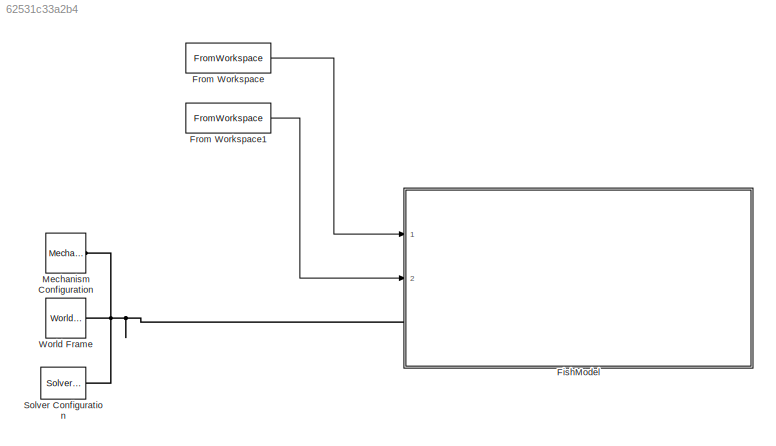
MODEL slx_62531c33a2b4
KIND model
CONFIG AbsTol = auto
CONFIG EnableMultiTasking = off
CONFIG FixedStep = auto
CONFIG InitFcn = initSoftFishCocontraction
CONFIG MaxStep = auto
CONFIG MinStep = auto
CONFIG RelTol = 1e-3
CONFIG SampleTimeConstraint = Unconstrained
CONFIG Solver = VariableStepAuto
CONFIG SolverName = VariableStepAuto
CONFIG StartTime = 0.0
CONFIG StopTime = tEnd
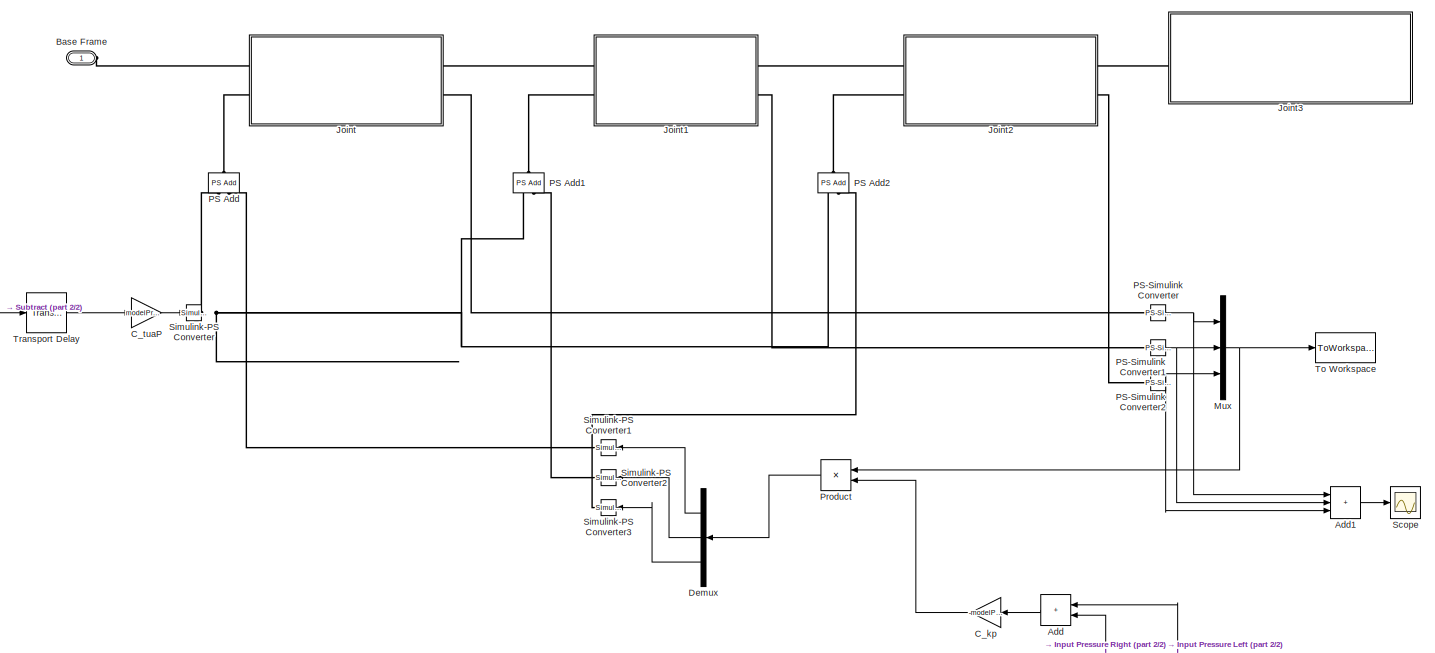
[diagram: FishModel - part 1/2, most of the canvas]
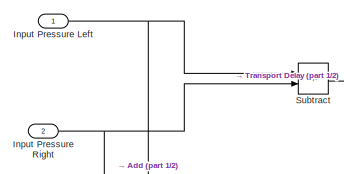
[diagram: FishModel - part 2/2, middle left region]
BLOCK [SubSystem] FishModel
  Ports = [2, 0, 0, 0, 0, 1]
  RequestExecContextInheritance = off
BLOCK [Sum] FishModel/Add
  IconShape = rectangular
  Ports = [2, 1]
BLOCK [Sum] FishModel/Add1
  IconShape = rectangular
  Inputs = +++
  Ports = [3, 1]
BLOCK [PMIOPort] FishModel/Base Frame
  Side = Left
BLOCK [Gain] FishModel/C_kp
  Gain = -modelPressureStiffness
BLOCK [Gain] FishModel/C_tuaP
  Gain = modelPressureCoefficient
BLOCK [Demux] FishModel/Demux
  Outputs = 3
  Ports = [1, 3]
BLOCK [Inport] FishModel/Input Pressure Left
BLOCK [Inport] FishModel/Input Pressure Right
  Port = 2
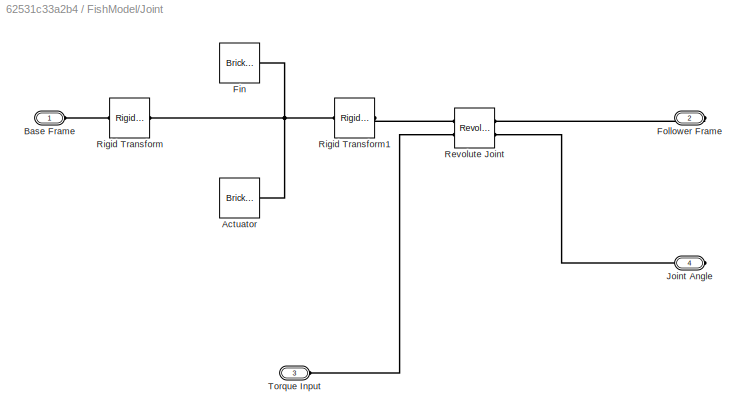
BLOCK [SubSystem] FishModel/Joint
  Ports = [0, 0, 0, 0, 0, 2, 2]
  RequestExecContextInheritance = off
BLOCK [Reference] FishModel/Joint/Actuator  REF=sm_lib/Body Elements/Brick Solid
  Ports = [0, 0, 0, 0, 0, 0, 1]
  SourceBlock = sm_lib/Body Elements/Brick Solid
  SourceProductBaseCode = MS
  SourceType = Brick Solid
BLOCK [PMIOPort] FishModel/Joint/Base Frame
  Side = Left
BLOCK [Reference] FishModel/Joint/Fin  REF=sm_lib/Body Elements/Brick Solid
  Ports = [0, 0, 0, 0, 0, 0, 1]
  SourceBlock = sm_lib/Body Elements/Brick Solid
  SourceProductBaseCode = MS
  SourceType = Brick Solid
BLOCK [PMIOPort] FishModel/Joint/Follower Frame
  Port = 2
  Side = Right
BLOCK [PMIOPort] FishModel/Joint/Joint Angle 
  Port = 4
  Side = Right
BLOCK [Reference] FishModel/Joint/Revolute Joint  REF=sm_lib/Joints/Revolute Joint
  Ports = [0, 0, 0, 0, 0, 2, 2]
  SourceBlock = sm_lib/Joints/Revolute Joint
  SourceProductBaseCode = MS
  SourceType = Revolute Joint
BLOCK [Reference] FishModel/Joint/Rigid Transform  REF=sm_lib/Frames and
Transforms/Rigid
Transform
  Ports = [0, 0, 0, 0, 0, 1, 1]
  SourceBlock = sm_lib/Frames and\nTransforms/Rigid\nTransform
  SourceProductBaseCode = MS
  SourceType = Rigid\nTransform
BLOCK [Reference] FishModel/Joint/Rigid Transform1  REF=sm_lib/Frames and
Transforms/Rigid
Transform
  Ports = [0, 0, 0, 0, 0, 1, 1]
  SourceBlock = sm_lib/Frames and\nTransforms/Rigid\nTransform
  SourceProductBaseCode = MS
  SourceType = Rigid\nTransform
BLOCK [PMIOPort] FishModel/Joint/Torque Input
  Port = 3
  Side = Left
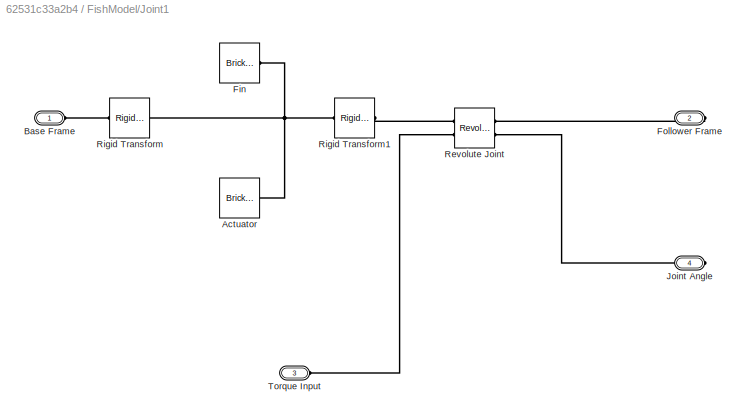
BLOCK [SubSystem] FishModel/Joint1
  Ports = [0, 0, 0, 0, 0, 2, 2]
  RequestExecContextInheritance = off
BLOCK [Reference] FishModel/Joint1/Actuator  REF=sm_lib/Body Elements/Brick Solid
  Ports = [0, 0, 0, 0, 0, 0, 1]
  SourceBlock = sm_lib/Body Elements/Brick Solid
  SourceProductBaseCode = MS
  SourceType = Brick Solid
BLOCK [PMIOPort] FishModel/Joint1/Base Frame
  Side = Left
BLOCK [Reference] FishModel/Joint1/Fin  REF=sm_lib/Body Elements/Brick Solid
  Ports = [0, 0, 0, 0, 0, 0, 1]
  SourceBlock = sm_lib/Body Elements/Brick Solid
  SourceProductBaseCode = MS
  SourceType = Brick Solid
BLOCK [PMIOPort] FishModel/Joint1/Follower Frame
  Port = 2
  Side = Right
BLOCK [PMIOPort] FishModel/Joint1/Joint Angle 
  Port = 4
  Side = Right
BLOCK [Reference] FishModel/Joint1/Revolute Joint  REF=sm_lib/Joints/Revolute Joint
  Ports = [0, 0, 0, 0, 0, 2, 2]
  SourceBlock = sm_lib/Joints/Revolute Joint
  SourceProductBaseCode = MS
  SourceType = Revolute Joint
BLOCK [Reference] FishModel/Joint1/Rigid Transform  REF=sm_lib/Frames and
Transforms/Rigid
Transform
  Ports = [0, 0, 0, 0, 0, 1, 1]
  SourceBlock = sm_lib/Frames and\nTransforms/Rigid\nTransform
  SourceProductBaseCode = MS
  SourceType = Rigid\nTransform
BLOCK [Reference] FishModel/Joint1/Rigid Transform1  REF=sm_lib/Frames and
Transforms/Rigid
Transform
  Ports = [0, 0, 0, 0, 0, 1, 1]
  SourceBlock = sm_lib/Frames and\nTransforms/Rigid\nTransform
  SourceProductBaseCode = MS
  SourceType = Rigid\nTransform
BLOCK [PMIOPort] FishModel/Joint1/Torque Input
  Port = 3
  Side = Left
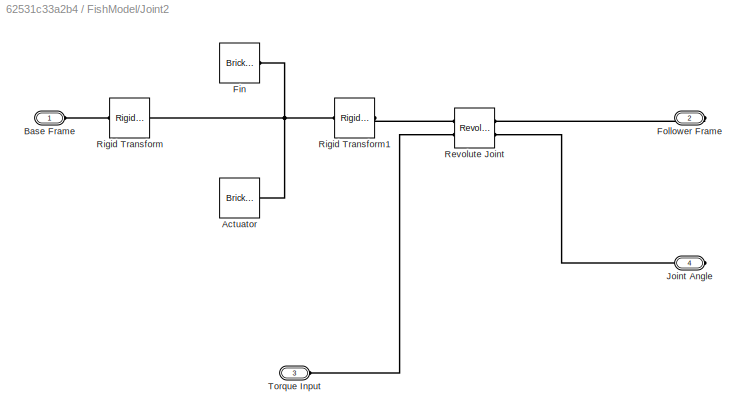
BLOCK [SubSystem] FishModel/Joint2
  Ports = [0, 0, 0, 0, 0, 2, 2]
  RequestExecContextInheritance = off
BLOCK [Reference] FishModel/Joint2/Actuator  REF=sm_lib/Body Elements/Brick Solid
  Ports = [0, 0, 0, 0, 0, 0, 1]
  SourceBlock = sm_lib/Body Elements/Brick Solid
  SourceProductBaseCode = MS
  SourceType = Brick Solid
BLOCK [PMIOPort] FishModel/Joint2/Base Frame
  Side = Left
BLOCK [Reference] FishModel/Joint2/Fin  REF=sm_lib/Body Elements/Brick Solid
  Ports = [0, 0, 0, 0, 0, 0, 1]
  SourceBlock = sm_lib/Body Elements/Brick Solid
  SourceProductBaseCode = MS
  SourceType = Brick Solid
BLOCK [PMIOPort] FishModel/Joint2/Follower Frame
  Port = 2
  Side = Right
BLOCK [PMIOPort] FishModel/Joint2/Joint Angle 
  Port = 4
  Side = Right
BLOCK [Reference] FishModel/Joint2/Revolute Joint  REF=sm_lib/Joints/Revolute Joint
  Ports = [0, 0, 0, 0, 0, 2, 2]
  SourceBlock = sm_lib/Joints/Revolute Joint
  SourceProductBaseCode = MS
  SourceType = Revolute Joint
BLOCK [Reference] FishModel/Joint2/Rigid Transform  REF=sm_lib/Frames and
Transforms/Rigid
Transform
  Ports = [0, 0, 0, 0, 0, 1, 1]
  SourceBlock = sm_lib/Frames and\nTransforms/Rigid\nTransform
  SourceProductBaseCode = MS
  SourceType = Rigid\nTransform
BLOCK [Reference] FishModel/Joint2/Rigid Transform1  REF=sm_lib/Frames and
Transforms/Rigid
Transform
  Ports = [0, 0, 0, 0, 0, 1, 1]
  SourceBlock = sm_lib/Frames and\nTransforms/Rigid\nTransform
  SourceProductBaseCode = MS
  SourceType = Rigid\nTransform
BLOCK [PMIOPort] FishModel/Joint2/Torque Input
  Port = 3
  Side = Left
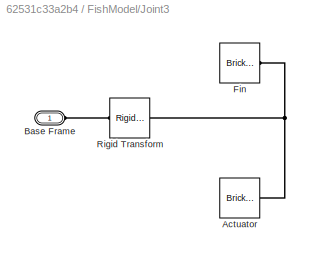
BLOCK [SubSystem] FishModel/Joint3
  Ports = [0, 0, 0, 0, 0, 1]
  RequestExecContextInheritance = off
BLOCK [Reference] FishModel/Joint3/Actuator  REF=sm_lib/Body Elements/Brick Solid
  Ports = [0, 0, 0, 0, 0, 0, 1]
  SourceBlock = sm_lib/Body Elements/Brick Solid
  SourceProductBaseCode = MS
  SourceType = Brick Solid
BLOCK [PMIOPort] FishModel/Joint3/Base Frame
  Side = Left
BLOCK [Reference] FishModel/Joint3/Fin  REF=sm_lib/Body Elements/Brick Solid
  Ports = [0, 0, 0, 0, 0, 0, 1]
  SourceBlock = sm_lib/Body Elements/Brick Solid
  SourceProductBaseCode = MS
  SourceType = Brick Solid
BLOCK [Reference] FishModel/Joint3/Rigid Transform  REF=sm_lib/Frames and
Transforms/Rigid
Transform
  Ports = [0, 0, 0, 0, 0, 1, 1]
  SourceBlock = sm_lib/Frames and\nTransforms/Rigid\nTransform
  SourceProductBaseCode = MS
  SourceType = Rigid\nTransform
BLOCK [Mux] FishModel/Mux
  DisplayOption = bar
  Inputs = 3
  Ports = [3, 1]
BLOCK [Reference] FishModel/PS Add  REF=fl_lib/Physical Signals/Functions/PS Add
  NameLocation = right
  Ports = [0, 0, 0, 0, 0, 2, 1]
  SourceBlock = fl_lib/Physical Signals/Functions/PS Add
  SourceProductBaseCode = SS
  SourceType = PS Add
BLOCK [Reference] FishModel/PS Add1  REF=fl_lib/Physical Signals/Functions/PS Add
  NameLocation = right
  Ports = [0, 0, 0, 0, 0, 2, 1]
  SourceBlock = fl_lib/Physical Signals/Functions/PS Add
  SourceProductBaseCode = SS
  SourceType = PS Add
BLOCK [Reference] FishModel/PS Add2  REF=fl_lib/Physical Signals/Functions/PS Add
  NameLocation = right
  Ports = [0, 0, 0, 0, 0, 2, 1]
  SourceBlock = fl_lib/Physical Signals/Functions/PS Add
  SourceProductBaseCode = SS
  SourceType = PS Add
BLOCK [Reference] FishModel/PS-Simulink Converter  REF=nesl_utility/PS-Simulink
Converter
  Ports = [0, 1, 0, 0, 0, 1]
  SourceBlock = nesl_utility/PS-Simulink\nConverter
  SourceProductBaseCode = SS
  SourceType = PS-Simulink\nConverter
BLOCK [Reference] FishModel/PS-Simulink Converter1  REF=nesl_utility/PS-Simulink
Converter
  Ports = [0, 1, 0, 0, 0, 1]
  SourceBlock = nesl_utility/PS-Simulink\nConverter
  SourceProductBaseCode = SS
  SourceType = PS-Simulink\nConverter
BLOCK [Reference] FishModel/PS-Simulink Converter2  REF=nesl_utility/PS-Simulink
Converter
  Ports = [0, 1, 0, 0, 0, 1]
  SourceBlock = nesl_utility/PS-Simulink\nConverter
  SourceProductBaseCode = SS
  SourceType = PS-Simulink\nConverter
BLOCK [Product] FishModel/Product
  Ports = [2, 1]
BLOCK [Scope] FishModel/Scope
  Floating = off
  NumInputPorts = 1
  Ports = [1]
  ScopeSpecificationString = Simulink.scopes.TimeScopeBlockCfg('CurrentConfiguration', extmgr.ConfigurationSet(extmgr.Configuration('Core','General UI',true),extmgr.Configuration('Core','Source UI',true),extmgr.Configuration('Sources','WiredSimulink',true),extmgr.Configuration('Visuals','Time Domain',true,'SerializedDisplays',{struct('MinYLimReal','-1.28147','MaxYLimReal','1.28145','YLabelReal','','MinYLimMag','0.00000','MaxY...<+1397ch>
BLOCK [Reference] FishModel/Simulink-PS Converter  REF=nesl_utility/Simulink-PS
Converter
  Ports = [1, 0, 0, 0, 0, 0, 1]
  SourceBlock = nesl_utility/Simulink-PS\nConverter
  SourceProductBaseCode = SS
  SourceType = Simulink-PS\nConverter
BLOCK [Reference] FishModel/Simulink-PS Converter1  REF=nesl_utility/Simulink-PS
Converter
  Ports = [1, 0, 0, 0, 0, 0, 1]
  SourceBlock = nesl_utility/Simulink-PS\nConverter
  SourceProductBaseCode = SS
  SourceType = Simulink-PS\nConverter
BLOCK [Reference] FishModel/Simulink-PS Converter2  REF=nesl_utility/Simulink-PS
Converter
  Ports = [1, 0, 0, 0, 0, 0, 1]
  SourceBlock = nesl_utility/Simulink-PS\nConverter
  SourceProductBaseCode = SS
  SourceType = Simulink-PS\nConverter
BLOCK [Reference] FishModel/Simulink-PS Converter3  REF=nesl_utility/Simulink-PS
Converter
  Ports = [1, 0, 0, 0, 0, 0, 1]
  SourceBlock = nesl_utility/Simulink-PS\nConverter
  SourceProductBaseCode = SS
  SourceType = Simulink-PS\nConverter
BLOCK [Sum] FishModel/Subtract
  IconShape = rectangular
  Inputs = +-
  Ports = [2, 1]
BLOCK [ToWorkspace] FishModel/To Workspace
  FixptAsFi = on
  MaxDataPoints = inf
  Ports = [1]
  SampleTime = -1
  SaveFormat = Structure With Time
  VariableName = angles
BLOCK [TransportDelay] FishModel/Transport Delay
  DelayTime = modelPressureLag
  Ports = [1, 1]
BLOCK [FromWorkspace] From Workspace
  VariableName = inputPressureLeft
BLOCK [FromWorkspace] From Workspace1
  VariableName = inputPressureRight
BLOCK [Reference] Mechanism Configuration  REF=sm_lib/Utilities/Mechanism
Configuration
  Ports = [0, 0, 0, 0, 0, 0, 1]
  SourceBlock = sm_lib/Utilities/Mechanism\nConfiguration
  SourceProductBaseCode = MS
  SourceType = Mechanism\nConfiguration
BLOCK [Reference] Solver Configuration  REF=nesl_utility/Solver
Configuration
  Ports = [0, 0, 0, 0, 0, 0, 1]
  SourceBlock = nesl_utility/Solver\nConfiguration
  SourceProductBaseCode = SS
  SourceType = Solver\nConfiguration
BLOCK [Reference] World Frame  REF=sm_lib/Frames and
Transforms/World Frame
  Ports = [0, 0, 0, 0, 0, 0, 1]
  SourceBlock = sm_lib/Frames and\nTransforms/World Frame
  SourceProductBaseCode = MS
  SourceType = World Frame
LINE FishModel/Add1:1 -> FishModel/Scope:1
LINE FishModel/Add:1 -> FishModel/C_kp:1
LINE FishModel/C_kp:1 -> FishModel/Product:2
LINE FishModel/C_tuaP:1 -> FishModel/Simulink-PS Converter:1
LINE FishModel/Demux:1 -> FishModel/Simulink-PS Converter1:1
LINE FishModel/Demux:2 -> FishModel/Simulink-PS Converter2:1
LINE FishModel/Demux:3 -> FishModel/Simulink-PS Converter3:1
NET FishModel/Input Pressure Left:1 -> FishModel/Add:1, FishModel/Subtract:1
NET FishModel/Input Pressure Right:1 -> FishModel/Add:2, FishModel/Subtract:2
NET FishModel/Mux:1 -> FishModel/Product:1, FishModel/To Workspace:1
NET FishModel/PS-Simulink Converter1:1 -> FishModel/Add1:2, FishModel/Mux:2
NET FishModel/PS-Simulink Converter2:1 -> FishModel/Add1:3, FishModel/Mux:3
NET FishModel/PS-Simulink Converter:1 -> FishModel/Add1:1, FishModel/Mux:1
LINE FishModel/Product:1 -> FishModel/Demux:1
LINE FishModel/Subtract:1 -> FishModel/Transport Delay:1
LINE FishModel/Transport Delay:1 -> FishModel/C_tuaP:1
LINE From Workspace1:1 -> FishModel:2
LINE From Workspace:1 -> FishModel:1
PLINE FishModel/Base Frame:RConn1 -- FishModel/Joint:LConn1
PNET net1: FishModel/Joint/Actuator:RConn1 -- FishModel/Joint/Fin:RConn1 -- FishModel/Joint/Rigid Transform1:LConn1 -- FishModel/Joint/Rigid Transform:RConn1
PLINE FishModel/Joint/Base Frame:RConn1 -- FishModel/Joint/Rigid Transform:LConn1
PLINE FishModel/Joint/Follower Frame:RConn1 -- FishModel/Joint/Revolute Joint:RConn1
PLINE FishModel/Joint/Joint Angle :RConn1 -- FishModel/Joint/Revolute Joint:RConn2
PLINE FishModel/Joint/Revolute Joint:LConn1 -- FishModel/Joint/Rigid Transform1:RConn1
PLINE FishModel/Joint/Revolute Joint:LConn2 -- FishModel/Joint/Torque Input:RConn1
PNET net2: FishModel/Joint1/Actuator:RConn1 -- FishModel/Joint1/Fin:RConn1 -- FishModel/Joint1/Rigid Transform1:LConn1 -- FishModel/Joint1/Rigid Transform:RConn1
PLINE FishModel/Joint1/Base Frame:RConn1 -- FishModel/Joint1/Rigid Transform:LConn1
PLINE FishModel/Joint1/Follower Frame:RConn1 -- FishModel/Joint1/Revolute Joint:RConn1
PLINE FishModel/Joint1/Joint Angle :RConn1 -- FishModel/Joint1/Revolute Joint:RConn2
PLINE FishModel/Joint1/Revolute Joint:LConn1 -- FishModel/Joint1/Rigid Transform1:RConn1
PLINE FishModel/Joint1/Revolute Joint:LConn2 -- FishModel/Joint1/Torque Input:RConn1
PLINE FishModel/Joint1:LConn1 -- FishModel/Joint:RConn1
PLINE FishModel/Joint1:LConn2 -- FishModel/PS Add1:RConn1
PLINE FishModel/Joint1:RConn1 -- FishModel/Joint2:LConn1
PLINE FishModel/Joint1:RConn2 -- FishModel/PS-Simulink Converter1:LConn1
PNET net3: FishModel/Joint2/Actuator:RConn1 -- FishModel/Joint2/Fin:RConn1 -- FishModel/Joint2/Rigid Transform1:LConn1 -- FishModel/Joint2/Rigid Transform:RConn1
PLINE FishModel/Joint2/Base Frame:RConn1 -- FishModel/Joint2/Rigid Transform:LConn1
PLINE FishModel/Joint2/Follower Frame:RConn1 -- FishModel/Joint2/Revolute Joint:RConn1
PLINE FishModel/Joint2/Joint Angle :RConn1 -- FishModel/Joint2/Revolute Joint:RConn2
PLINE FishModel/Joint2/Revolute Joint:LConn1 -- FishModel/Joint2/Rigid Transform1:RConn1
PLINE FishModel/Joint2/Revolute Joint:LConn2 -- FishModel/Joint2/Torque Input:RConn1
PLINE FishModel/Joint2:LConn2 -- FishModel/PS Add2:RConn1
PLINE FishModel/Joint2:RConn1 -- FishModel/Joint3:LConn1
PLINE FishModel/Joint2:RConn2 -- FishModel/PS-Simulink Converter2:LConn1
PNET net4: FishModel/Joint3/Actuator:RConn1 -- FishModel/Joint3/Fin:RConn1 -- FishModel/Joint3/Rigid Transform:RConn1
PLINE FishModel/Joint3/Base Frame:RConn1 -- FishModel/Joint3/Rigid Transform:LConn1
PLINE FishModel/Joint:LConn2 -- FishModel/PS Add:RConn1
PLINE FishModel/Joint:RConn2 -- FishModel/PS-Simulink Converter:LConn1
PNET net5: FishModel/PS Add1:LConn1 -- FishModel/PS Add2:LConn1 -- FishModel/PS Add:LConn1 -- FishModel/Simulink-PS Converter:RConn1
PLINE FishModel/PS Add1:LConn2 -- FishModel/Simulink-PS Converter2:RConn1
PLINE FishModel/PS Add2:LConn2 -- FishModel/Simulink-PS Converter3:RConn1
PLINE FishModel/PS Add:LConn2 -- FishModel/Simulink-PS Converter1:RConn1
PNET net6: FishModel:LConn1 -- Mechanism Configuration:RConn1 -- Solver Configuration:RConn1 -- World Frame:RConn1
note: NET lines group one-source signal fan-out (src -> all destinations, sorted); 1:1 wires keep LINE; PNET lines group multi-terminal physical nets as a canonical sorted terminal list (undirected conserving connections); 2-terminal nets keep the pairwise PLINE form
